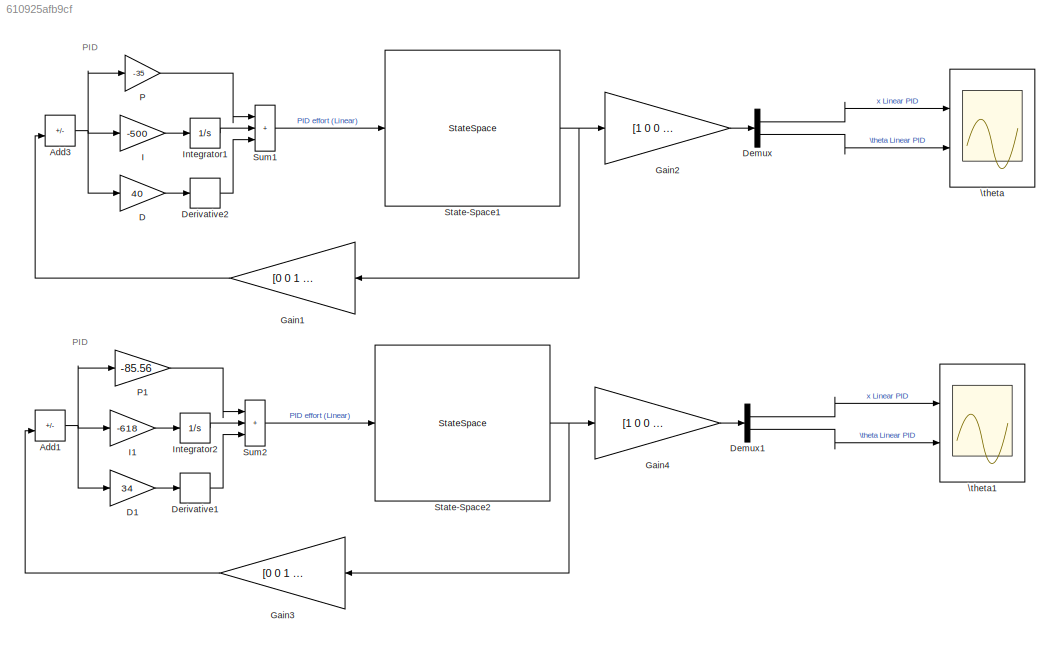
MODEL slx_610925afb9cf
KIND model
CONFIG AbsTol = auto
CONFIG EnableMultiTasking = off
CONFIG FixedStep = auto
CONFIG MaxStep = auto
CONFIG MinStep = auto
CONFIG RelTol = 1e-3
CONFIG SampleTimeConstraint = Unconstrained
CONFIG SolverName = VariableStepAuto
CONFIG StartTime = 0.0
CONFIG StopTime = 10.0
BLOCK [Sum] Add1
  IconShape = rectangular
  Inputs = +-
  Ports = [2, 1]
BLOCK [Sum] Add3
  IconShape = rectangular
  Inputs = +-
  Ports = [2, 1]
BLOCK [Gain] D
  Gain = 40
BLOCK [Gain] D1
  Gain = 34
BLOCK [Demux] Demux
  Outputs = 2
  Ports = [1, 2]
BLOCK [Demux] Demux1
  Outputs = 2
  Ports = [1, 2]
BLOCK [Derivative] Derivative1
BLOCK [Derivative] Derivative2
BLOCK [Gain] Gain1
  Gain = [0 0 1 0]
  Multiplication = Matrix(K*u)
  NameLocation = top
BLOCK [Gain] Gain2
  Gain = [1 0 0 0;0 0 1 0]
  Multiplication = Matrix(K*u)
BLOCK [Gain] Gain3
  Gain = [0 0 1 0]
  Multiplication = Matrix(K*u)
  NameLocation = top
BLOCK [Gain] Gain4
  Gain = [1 0 0 0;0 0 1 0]
  Multiplication = Matrix(K*u)
BLOCK [Gain] I
  Gain = -500
BLOCK [Gain] I1
  Gain = -618
BLOCK [Integrator] Integrator1
  Ports = [1, 1]
BLOCK [Integrator] Integrator2
  Ports = [1, 1]
BLOCK [Gain] P
  Gain = -35
BLOCK [Gain] P1
  Gain = -85.56
BLOCK [StateSpace] State-Space1
  A = [0 1 0 0;163.2653   88.1633  405.0653  121.1633;0 0 0 1;-163.2653  -88.1633 -395.2653 -121.1633]
  B = [0;0.5;0;-0.5]
  C = eye(4)
  D = [0;0;0;0]
  InitialCondition = [0;0;10*pi/180;0]
  Ports = [1, 1]
BLOCK [StateSpace] State-Space2
  A = [0 1 0 0;163.2653   88.1633  405.0653  121.1633;0 0 0 1;-163.2653  -88.1633 -395.2653 -121.1633]
  B = [0;0.5;0;-0.5]
  C = eye(4)
  D = [0;0;0;0]
  InitialCondition = [0;0;10*pi/180;0]
  Ports = [1, 1]
BLOCK [Sum] Sum1
  IconShape = rectangular
  Inputs = |+++
  Ports = [3, 1]
BLOCK [Sum] Sum2
  IconShape = rectangular
  Inputs = |+++
  Ports = [3, 1]
BLOCK [Scope] \theta
  Floating = off
  NumInputPorts = 2
  Ports = [2]
  ScopeSpecificationString = Simulink.scopes.TimeScopeBlockCfg('CurrentConfiguration', extmgr.ConfigurationSet(extmgr.Configuration('Core','General UI',true),extmgr.Configuration('Core','Source UI',true),extmgr.Configuration('Sources','WiredSimulink',true),extmgr.Configuration('Visuals','Time Domain',true,'SerializedDisplays',{struct('MinYLimReal','-0.04975','MaxYLimReal','0.2243','YLabelReal','\theta, [Rad]; x, [m]','MinYLim...<+1488ch>
BLOCK [Scope] \theta1
  Floating = off
  NumInputPorts = 2
  Ports = [2]
  ScopeSpecificationString = Simulink.scopes.TimeScopeBlockCfg('CurrentConfiguration', extmgr.ConfigurationSet(extmgr.Configuration('Core','General UI',true),extmgr.Configuration('Core','Source UI',true),extmgr.Configuration('Sources','WiredSimulink',true,'DataLoggingVariableName','ScopeData1'),extmgr.Configuration('Visuals','Time Domain',true,'SerializedDisplays',{struct('MinYLimReal','-0.26402','MaxYLimReal','0.44775','YLab...<+1531ch>
ANNOTATION (root): PID
NET Add1:1 -> D1:1, I1:1, P1:1
NET Add3:1 -> D:1, I:1, P:1
LINE D1:1 -> Derivative1:1
LINE D:1 -> Derivative2:1
LINE Demux1:1 -> \theta1:1
LINE Demux1:2 -> \theta1:2
LINE Demux:1 -> \theta:1
LINE Demux:2 -> \theta:2
LINE Derivative1:1 -> Sum2:3
LINE Derivative2:1 -> Sum1:3
LINE Gain1:1 -> Add3:2
LINE Gain2:1 -> Demux:1
LINE Gain3:1 -> Add1:2
LINE Gain4:1 -> Demux1:1
LINE I1:1 -> Integrator2:1
LINE I:1 -> Integrator1:1
LINE Integrator1:1 -> Sum1:2
LINE Integrator2:1 -> Sum2:2
LINE P1:1 -> Sum2:1
LINE P:1 -> Sum1:1
NET State-Space1:1 -> Gain1:1, Gain2:1
NET State-Space2:1 -> Gain3:1, Gain4:1
LINE Sum1:1 -> State-Space1:1
LINE Sum2:1 -> State-Space2:1
note: NET lines group one-source signal fan-out (src -> all destinations, sorted); 1:1 wires keep LINE
